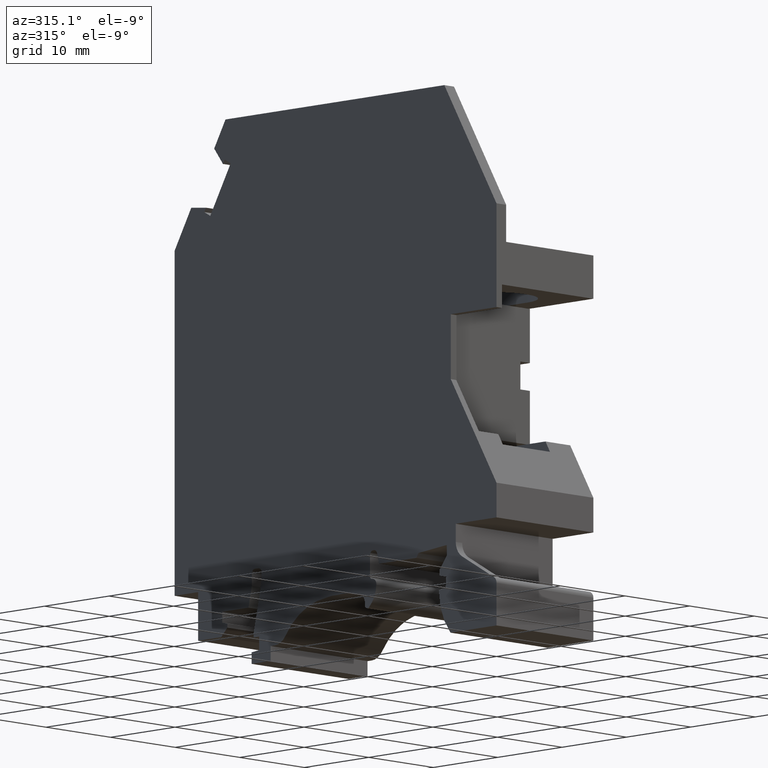
[diagram: clean part render]
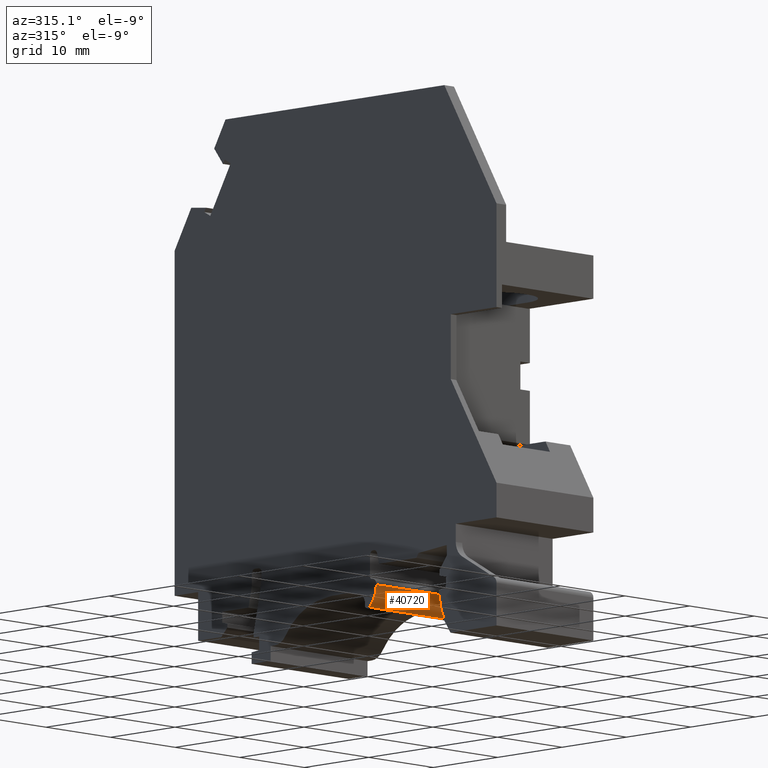
[diagram: same view with one face highlighted and labeled with its STEP entity id]
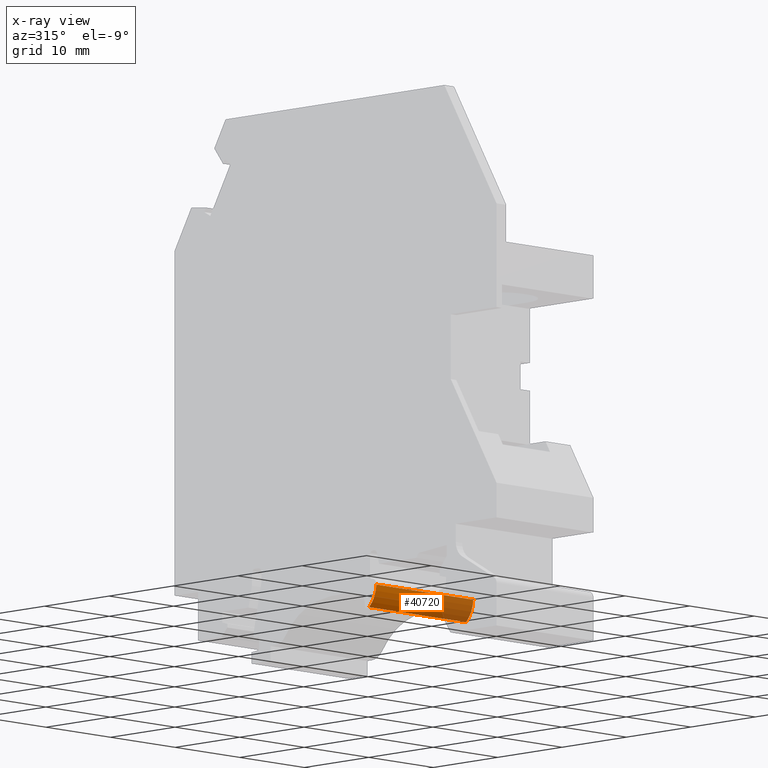
[diagram: x-ray of the same camera — body ghosted, the highlighted face saturated]
A machine part, auxiliary view. The second image highlights one B-rep face of the part: STEP entity #40720.
The next image is the same camera in x-ray: the body ghosted, the highlighted face saturated — about 31% of this face is hidden behind the body in this view.
In plain terms, the highlighted cylindrical surface (edge-blend (fillet) strip) has radius 3.35 mm, axis along (1, -0, 0).
Its self-contained STEP definition (entity closure, byte-faithful):
#680=CARTESIAN_POINT('',(6.44437826129267,-55.4794965698217,
-7.49999999999998));
#690=VERTEX_POINT('',#680);
#720=CARTESIAN_POINT('',(6.44437826129268,-55.4794965698217,
7.51500000000002));
#730=DIRECTION('',(0.,0.,-1.));
#740=VECTOR('',#730,1.);
#750=LINE('',#720,#740);
#760=CARTESIAN_POINT('',(6.44437826129267,-55.4794965698217,
7.50000000000002));
#770=VERTEX_POINT('',#760);
#780=EDGE_CURVE('',#770,#690,#750,.T.);
#12330=CARTESIAN_POINT('',(3.09735372510636,-55.3383344142464,
7.50000000000002));
#12340=DIRECTION('',(0.,0.,-1.));
#12350=DIRECTION('',(-1.,0.,0.));
#12360=AXIS2_PLACEMENT_3D('',#12330,#12340,#12350);
#12370=CIRCLE('',#12360,3.34999999999999);
#12380=CARTESIAN_POINT('',(5.30908763049407,-57.8544292319666,
7.50000000000002));
#12390=VERTEX_POINT('',#12380);
#12400=EDGE_CURVE('',#770,#12390,#12370,.T.);
#27300=CARTESIAN_POINT('',(5.30908763049407,-57.8544292319666,
-7.49999999999998));
#27310=VERTEX_POINT('',#27300);
#27340=CARTESIAN_POINT('',(3.09735372510636,-55.3383344142464,
-7.49999999999998));
#27350=DIRECTION('',(0.,0.,-1.));
#27360=DIRECTION('',(-1.,0.,0.));
#27370=AXIS2_PLACEMENT_3D('',#27340,#27350,#27360);
#27380=CIRCLE('',#27370,3.34999999999999);
#27390=EDGE_CURVE('',#690,#27310,#27380,.T.);
#34070=CARTESIAN_POINT('',(5.30908763049407,-57.8544292319666,
7.51500000000002));
#34080=DIRECTION('',(0.,0.,-1.));
#34090=VECTOR('',#34080,1.);
#34100=LINE('',#34070,#34090);
#34110=EDGE_CURVE('',#12390,#27310,#34100,.T.);
#40610=CARTESIAN_POINT('',(3.09735372510636,-55.3383344142464,
7.51500000000002));
#40620=DIRECTION('',(0.,0.,-1.));
#40630=DIRECTION('',(-1.,0.,0.));
#40640=AXIS2_PLACEMENT_3D('',#40610,#40620,#40630);
#40650=CYLINDRICAL_SURFACE('',#40640,3.34999999999999);
#40660=ORIENTED_EDGE('',*,*,#780,.F.);
#40670=ORIENTED_EDGE('',*,*,#27390,.F.);
#40680=ORIENTED_EDGE('',*,*,#34110,.T.);
#40690=ORIENTED_EDGE('',*,*,#12400,.T.);
#40700=EDGE_LOOP('',(#40690,#40680,#40670,#40660));
#40710=FACE_OUTER_BOUND('',#40700,.T.);
#40720=ADVANCED_FACE('',(#40710),#40650,.T.);